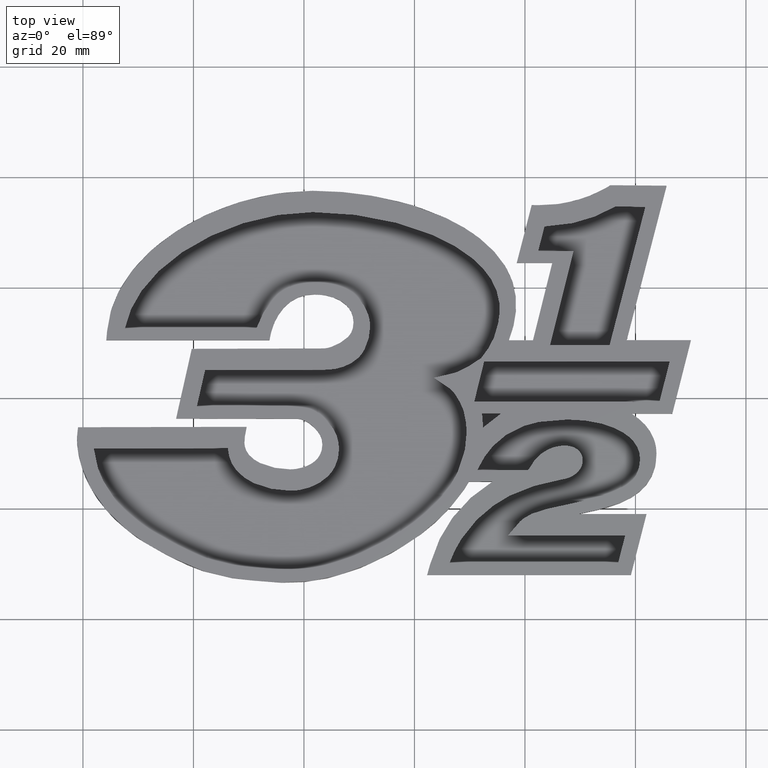
[diagram: clean part render]
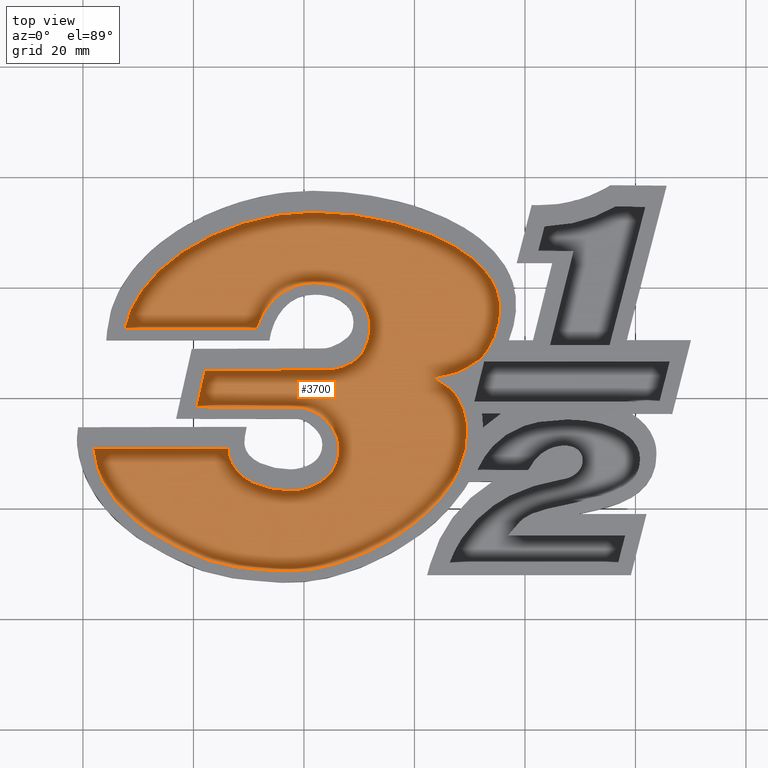
[diagram: same view with one face highlighted and labeled with its STEP entity id]
A machine part, top view. The second image highlights one B-rep face of the part: STEP entity #3700.
In plain terms, the highlighted planar face has unit normal (0, 0, 1).
Its self-contained STEP definition (entity closure, byte-faithful):
#4 = EDGE_LOOP ( 'NONE', ( #2878, #2910, #3006, #2913, #3058, #3101, #3119, #3116, #2916, #3129, #3126, #2927, #2925, #2917, #2920, #2911, #2876, #2849, #3040, #3038, #3024, #3012, #2997, #3181, #3066, #3270, #3077, #3191, #3070, #3272, #3008, #3180, #3168, #2915 ) ) ;
#17 = VERTEX_POINT ( 'NONE', #1053 ) ;
#19 = VERTEX_POINT ( 'NONE', #5484 ) ;
#34 = VERTEX_POINT ( 'NONE', #1055 ) ;
#44 = VERTEX_POINT ( 'NONE', #1065 ) ;
#47 = VERTEX_POINT ( 'NONE', #1068 ) ;
#51 = VERTEX_POINT ( 'NONE', #1072 ) ;
#52 = VERTEX_POINT ( 'NONE', #1073 ) ;
#55 = VERTEX_POINT ( 'NONE', #1076 ) ;
#56 = VERTEX_POINT ( 'NONE', #1077 ) ;
#61 = VERTEX_POINT ( 'NONE', #1081 ) ;
#67 = VERTEX_POINT ( 'NONE', #1087 ) ;
#72 = VERTEX_POINT ( 'NONE', #1092 ) ;
#73 = VERTEX_POINT ( 'NONE', #1093 ) ;
#78 = VERTEX_POINT ( 'NONE', #1098 ) ;
#85 = VERTEX_POINT ( 'NONE', #1105 ) ;
#90 = VERTEX_POINT ( 'NONE', #1110 ) ;
#92 = VERTEX_POINT ( 'NONE', #1112 ) ;
#95 = VERTEX_POINT ( 'NONE', #1115 ) ;
#97 = VERTEX_POINT ( 'NONE', #1117 ) ;
#98 = VERTEX_POINT ( 'NONE', #1118 ) ;
#103 = VERTEX_POINT ( 'NONE', #1123 ) ;
#105 = VERTEX_POINT ( 'NONE', #1125 ) ;
#108 = VERTEX_POINT ( 'NONE', #1128 ) ;
#110 = VERTEX_POINT ( 'NONE', #1130 ) ;
#111 = VERTEX_POINT ( 'NONE', #1131 ) ;
#112 = VERTEX_POINT ( 'NONE', #1132 ) ;
#148 = VERTEX_POINT ( 'NONE', #1168 ) ;
#153 = VERTEX_POINT ( 'NONE', #1173 ) ;
#159 = VERTEX_POINT ( 'NONE', #1179 ) ;
#162 = VERTEX_POINT ( 'NONE', #1182 ) ;
#166 = VERTEX_POINT ( 'NONE', #1186 ) ;
#167 = VERTEX_POINT ( 'NONE', #1187 ) ;
#173 = VERTEX_POINT ( 'NONE', #1193 ) ;
#180 = VERTEX_POINT ( 'NONE', #1200 ) ;
#443 = VECTOR ( 'NONE', #5154, 999.9999999999998900 ) ;
#454 = VECTOR ( 'NONE', #5073, 1000.000000000000000 ) ;
#486 = VECTOR ( 'NONE', #5019, 1000.000000000000100 ) ;
#496 = VECTOR ( 'NONE', #5143, 1000.000000000000000 ) ;
#524 = VECTOR ( 'NONE', #5051, 1000.000000000000100 ) ;
#599 = EDGE_CURVE ( 'NONE', #162, #167, #3325, .T. ) ;
#602 = EDGE_CURVE ( 'NONE', #108, #110, #4195, .T. ) ;
#603 = EDGE_CURVE ( 'NONE', #173, #108, #4196, .T. ) ;
#610 = EDGE_CURVE ( 'NONE', #153, #111, #4198, .T. ) ;
#613 = EDGE_CURVE ( 'NONE', #159, #98, #4199, .T. ) ;
#618 = EDGE_CURVE ( 'NONE', #180, #97, #1583, .T. ) ;
#620 = EDGE_CURVE ( 'NONE', #97, #162, #1580, .T. ) ;
#623 = EDGE_CURVE ( 'NONE', #105, #159, #4202, .T. ) ;
#629 = EDGE_CURVE ( 'NONE', #103, #166, #1609, .T. ) ;
#635 = EDGE_CURVE ( 'NONE', #73, #180, #4204, .T. ) ;
#640 = EDGE_CURVE ( 'NONE', #166, #173, #4207, .T. ) ;
#642 = EDGE_CURVE ( 'NONE', #111, #47, #1660, .T. ) ;
#646 = EDGE_CURVE ( 'NONE', #47, #103, #4208, .T. ) ;
#649 = EDGE_CURVE ( 'NONE', #110, #112, #4209, .T. ) ;
#655 = EDGE_CURVE ( 'NONE', #112, #95, #4210, .T. ) ;
#658 = EDGE_CURVE ( 'NONE', #98, #153, #4211, .T. ) ;
#672 = EDGE_CURVE ( 'NONE', #167, #105, #4218, .T. ) ;
#765 = AXIS2_PLACEMENT_3D ( 'NONE', #3848, #3854, #3855 ) ;
#1053 = CARTESIAN_POINT ( 'NONE',  ( 89.88598630565350300, 147.3221153438261100, -3.388131789017201400E-018 ) ) ;
#1055 = CARTESIAN_POINT ( 'NONE',  ( 115.3535101708144200, 157.2197024181745900, -3.388131789017201400E-018 ) ) ;
#1065 = CARTESIAN_POINT ( 'NONE',  ( 106.8396456981165100, 144.4537288428071000, 0.0000000000000000000 ) ) ;
#1068 = CARTESIAN_POINT ( 'NONE',  ( 41.97056476815319600, 130.8559369625259900, 0.0000000000000000000 ) ) ;
#1072 = CARTESIAN_POINT ( 'NONE',  ( 71.36877032720988700, 152.6053415252310100, 0.0000000000000000000 ) ) ;
#1073 = CARTESIAN_POINT ( 'NONE',  ( 108.7740668130843000, 138.0362049728837200, 0.0000000000000000000 ) ) ;
#1076 = CARTESIAN_POINT ( 'NONE',  ( 81.86166990140958400, 160.9047488039721000, -3.388131789017201400E-018 ) ) ;
#1077 = CARTESIAN_POINT ( 'NONE',  ( 109.7128553328148000, 145.6993031154991900, 0.0000000000000000000 ) ) ;
#1081 = CARTESIAN_POINT ( 'NONE',  ( 106.3351050433560500, 141.7493304922268500, 0.0000000000000000000 ) ) ;
#1087 = CARTESIAN_POINT ( 'NONE',  ( 81.58468422439550200, 173.6564252330759400, -3.388131789017201400E-018 ) ) ;
#1092 = CARTESIAN_POINT ( 'NONE',  ( 108.1079576010111900, 139.4199275745343100, 1.084202172485504400E-016 ) ) ;
#1093 = CARTESIAN_POINT ( 'NONE',  ( 83.61281193656208200, 145.1169097237177300, -3.388131789017201400E-018 ) ) ;
#1098 = CARTESIAN_POINT ( 'NONE',  ( 112.0737792688566100, 147.2392607974059000, 0.0000000000000000000 ) ) ;
#1105 = CARTESIAN_POINT ( 'NONE',  ( 113.3395073501374000, 148.9829958772650400, 0.0000000000000000000 ) ) ;
#1110 = CARTESIAN_POINT ( 'NONE',  ( 47.59244383575813900, 152.6053415252310100, 0.0000000000000000000 ) ) ;
#1112 = CARTESIAN_POINT ( 'NONE',  ( 103.4923909246476900, 143.6754817726892100, 0.0000000000000000000 ) ) ;
#1115 = CARTESIAN_POINT ( 'NONE',  ( 108.9339192435999000, 137.4557063836190900, 0.0000000000000000000 ) ) ;
#1117 = CARTESIAN_POINT ( 'NONE',  ( 60.60009085941596400, 138.4286013486537000, 0.0000000000000000000 ) ) ;
#1118 = CARTESIAN_POINT ( 'NONE',  ( 77.55082192071645900, 123.2198828194697000, -3.388131789017201400E-018 ) ) ;
#1123 = CARTESIAN_POINT ( 'NONE',  ( 56.61015352317386400, 113.3734554130772000, 0.0000000000000000000 ) ) ;
#1125 = CARTESIAN_POINT ( 'NONE',  ( 86.33977726791158600, 130.7398372446731100, -3.388131789017201400E-018 ) ) ;
#1128 = CARTESIAN_POINT ( 'NONE',  ( 99.39548337358863300, 116.9050227950068000, -3.388131789017201400E-018 ) ) ;
#1130 = CARTESIAN_POINT ( 'NONE',  ( 106.4818725319733100, 124.2434206881374100, -3.388131789017201400E-018 ) ) ;
#1131 = CARTESIAN_POINT ( 'NONE',  ( 66.21990286972975100, 130.9165706430663900, 0.0000000000000000000 ) ) ;
#1132 = CARTESIAN_POINT ( 'NONE',  ( 106.5473293461930000, 124.3385053235303000, -3.388131789017201400E-018 ) ) ;
#1168 = CARTESIAN_POINT ( 'NONE',  ( 91.97474769836048800, 152.8504600690064900, -3.388131789017201400E-018 ) ) ;
#1173 = CARTESIAN_POINT ( 'NONE',  ( 67.74573566014690600, 126.9378298671512900, -3.388131789017201400E-018 ) ) ;
#1179 = CARTESIAN_POINT ( 'NONE',  ( 84.34489472717768900, 125.8388444073566000, -3.388131789017201400E-018 ) ) ;
#1182 = CARTESIAN_POINT ( 'NONE',  ( 78.86736516040468800, 138.3882937314762100, 0.0000000000000000000 ) ) ;
#1186 = CARTESIAN_POINT ( 'NONE',  ( 57.65591225772144700, 112.8591026571294000, 0.0000000000000000000 ) ) ;
#1187 = CARTESIAN_POINT ( 'NONE',  ( 84.00520831233203000, 136.0332264577594100, -3.388131789017201400E-018 ) ) ;
#1193 = CARTESIAN_POINT ( 'NONE',  ( 76.10457083600857700, 108.7401464949647000, -3.388131789017201400E-018 ) ) ;
#1200 = CARTESIAN_POINT ( 'NONE',  ( 62.10783689853556700, 145.0547257502088900, 0.0000000000000000000 ) ) ;
#1514 = CARTESIAN_POINT ( 'NONE',  ( 79.92897133418442500, 138.3882937314762100, -3.388131789017201400E-018 ) ) ;
#1517 = CARTESIAN_POINT ( 'NONE',  ( 78.86736516040468800, 138.3882937314762100, 0.0000000000000000000 ) ) ;
#1521 = CARTESIAN_POINT ( 'NONE',  ( 82.24476451936936900, 137.7936702507221300, -3.388131789017201400E-018 ) ) ;
#1522 = CARTESIAN_POINT ( 'NONE',  ( 84.00520831233203000, 136.0332264577594100, -3.388131789017201400E-018 ) ) ;
#1525 = CARTESIAN_POINT ( 'NONE',  ( 99.39548337358863300, 116.9050227950068000, -3.388131789017201400E-018 ) ) ;
#1526 = CARTESIAN_POINT ( 'NONE',  ( 102.1887667930292000, 118.9893055635829000, -3.388131789017201400E-018 ) ) ;
#1529 = CARTESIAN_POINT ( 'NONE',  ( 76.10457083600857700, 108.7401464949647000, -3.388131789017201400E-018 ) ) ;
#1530 = CARTESIAN_POINT ( 'NONE',  ( 86.95851641706245500, 108.2895280054940100, -3.388131789017201400E-018 ) ) ;
#1531 = CARTESIAN_POINT ( 'NONE',  ( 104.5729451235964000, 121.4584054978615100, -3.388131789017201400E-018 ) ) ;
#1532 = CARTESIAN_POINT ( 'NONE',  ( 106.4818725319733100, 124.2434206881374100, -3.388131789017201400E-018 ) ) ;
#1533 = CARTESIAN_POINT ( 'NONE',  ( 66.79609508963778800, 128.0788454918661000, -3.388131789017201400E-018 ) ) ;
#1535 = CARTESIAN_POINT ( 'NONE',  ( 96.67575274275814900, 114.8755170446461000, -3.388131789017201400E-018 ) ) ;
#1536 = CARTESIAN_POINT ( 'NONE',  ( 99.39548337358863300, 116.9050227950068000, -3.388131789017201400E-018 ) ) ;
#1553 = CARTESIAN_POINT ( 'NONE',  ( 67.74573566014690600, 126.9378298671512900, -3.388131789017201400E-018 ) ) ;
#1557 = CARTESIAN_POINT ( 'NONE',  ( 66.28277586233555500, 129.4327680175692900, -3.388131789017201400E-018 ) ) ;
#1558 = CARTESIAN_POINT ( 'NONE',  ( 66.21990286972975100, 130.9165706430663900, 0.0000000000000000000 ) ) ;
#1560 = CARTESIAN_POINT ( 'NONE',  ( 82.41391870769513200, 123.9078683878741200, -3.388131789017201400E-018 ) ) ;
#1564 = CARTESIAN_POINT ( 'NONE',  ( 84.34489472717768900, 125.8388444073566000, -3.388131789017201400E-018 ) ) ;
#1567 = CARTESIAN_POINT ( 'NONE',  ( 79.56930336552434800, 123.2198828194697000, -3.388131789017201400E-018 ) ) ;
#1568 = CARTESIAN_POINT ( 'NONE',  ( 77.55082192071645900, 123.2198828194697000, -3.388131789017201400E-018 ) ) ;
#1579 = CARTESIAN_POINT ( 'NONE',  ( 86.33977726791158600, 130.7398372446731100, -3.388131789017201400E-018 ) ) ;
#1580 = LINE ( 'NONE', #1590, #2621 ) ;
#1583 = LINE ( 'NONE', #1584, #2633 ) ;
#1584 = CARTESIAN_POINT ( 'NONE',  ( 40.17839030737962200, 48.68090854216829700, 0.0000000000000000000 ) ) ;
#1585 = DIRECTION ( 'NONE',  ( -0.2218741813064825700, -0.9750753035892038000, 0.0000000000000000000 ) ) ;
#1590 = CARTESIAN_POINT ( 'NONE',  ( 96.76179477192720000, 138.3488088139944800, 0.0000000000000000000 ) ) ;
#1591 = DIRECTION ( 'NONE',  ( 0.9999975655818993400, -0.002206542606617476900, 0.0000000000000000000 ) ) ;
#1596 = CARTESIAN_POINT ( 'NONE',  ( 86.33977726791158600, 128.8384890463636900, -3.388131789017201400E-018 ) ) ;
#1601 = CARTESIAN_POINT ( 'NONE',  ( 85.65006915176456900, 127.1438465771692800, -3.388131789017201400E-018 ) ) ;
#1602 = CARTESIAN_POINT ( 'NONE',  ( 84.34489472717768900, 125.8388444073566000, -3.388131789017201400E-018 ) ) ;
#1609 = LINE ( 'NONE', #1619, #2635 ) ;
#1619 = CARTESIAN_POINT ( 'NONE',  ( 119.4580805534823900, 82.46192352170808700, 0.0000000000000000000 ) ) ;
#1620 = DIRECTION ( 'NONE',  ( 0.8973346123581560400, -0.4413508734148349200, 0.0000000000000000000 ) ) ;
#1629 = CARTESIAN_POINT ( 'NONE',  ( 81.96881237100085100, 145.1599734172833100, -3.388131789017201400E-018 ) ) ;
#1632 = CARTESIAN_POINT ( 'NONE',  ( 83.61281193656208200, 145.1169097237177300, -3.388131789017201400E-018 ) ) ;
#1638 = CARTESIAN_POINT ( 'NONE',  ( 66.56062281322095900, 145.0791859281542300, -3.388131789017201400E-018 ) ) ;
#1639 = CARTESIAN_POINT ( 'NONE',  ( 62.10783689853556700, 145.0547257502088900, 0.0000000000000000000 ) ) ;
#1647 = CARTESIAN_POINT ( 'NONE',  ( 61.79519448324911900, 110.8144384866336100, -3.388131789017201400E-018 ) ) ;
#1652 = CARTESIAN_POINT ( 'NONE',  ( 57.65591225772144700, 112.8591026571294000, 0.0000000000000000000 ) ) ;
#1654 = CARTESIAN_POINT ( 'NONE',  ( 42.21930066218823900, 127.6495865944040100, -3.388131789017201400E-018 ) ) ;
#1655 = CARTESIAN_POINT ( 'NONE',  ( 65.06476235352548100, 109.1986887040514100, -3.388131789017201400E-018 ) ) ;
#1656 = CARTESIAN_POINT ( 'NONE',  ( 76.10457083600857700, 108.7401464949647000, -3.388131789017201400E-018 ) ) ;
#1660 = LINE ( 'NONE', #1661, #2724 ) ;
#1661 = CARTESIAN_POINT ( 'NONE',  ( 96.29776446326803800, 130.9917781165059400, 0.0000000000000000000 ) ) ;
#1662 = DIRECTION ( 'NONE',  ( -0.9999968739490449100, -0.002500418392553534700, 0.0000000000000000000 ) ) ;
#1670 = CARTESIAN_POINT ( 'NONE',  ( 41.97056476815319600, 130.8559369625259900, 0.0000000000000000000 ) ) ;
#1673 = CARTESIAN_POINT ( 'NONE',  ( 106.5475016009672900, 124.3391943426273900, -3.388131789017201400E-018 ) ) ;
#1674 = CARTESIAN_POINT ( 'NONE',  ( 44.12977836353353200, 119.4506038490579000, -3.388131789017201400E-018 ) ) ;
#1675 = CARTESIAN_POINT ( 'NONE',  ( 56.61015352317386400, 113.3734554130772000, 0.0000000000000000000 ) ) ;
#1680 = CARTESIAN_POINT ( 'NONE',  ( 106.4818725319733100, 124.2434206881374100, -3.388131789017201400E-018 ) ) ;
#1683 = CARTESIAN_POINT ( 'NONE',  ( 106.5473293461930000, 124.3385053235303000, -3.388131789017201400E-018 ) ) ;
#1684 = CARTESIAN_POINT ( 'NONE',  ( 106.9862345110139000, 124.9751589692045000, -3.388131789017201400E-018 ) ) ;
#1685 = CARTESIAN_POINT ( 'NONE',  ( 106.5473293461930000, 124.3385053235303000, -3.388131789017201400E-018 ) ) ;
#1701 = CARTESIAN_POINT ( 'NONE',  ( 74.30640324748245000, 123.2198828194697000, -3.388131789017201400E-018 ) ) ;
#1702 = CARTESIAN_POINT ( 'NONE',  ( 77.55082192071645900, 123.2198828194697000, -3.388131789017201400E-018 ) ) ;
#1703 = CARTESIAN_POINT ( 'NONE',  ( 110.7811794427908000, 130.7525840979685100, -3.388131789017201400E-018 ) ) ;
#1704 = CARTESIAN_POINT ( 'NONE',  ( 108.9339192435999000, 137.4557063836190900, 0.0000000000000000000 ) ) ;
#1713 = CARTESIAN_POINT ( 'NONE',  ( 70.02673338093082100, 124.1965673895381000, -3.388131789017201400E-018 ) ) ;
#1714 = CARTESIAN_POINT ( 'NONE',  ( 67.74573566014690600, 126.9378298671512900, -3.388131789017201400E-018 ) ) ;
#1756 = CARTESIAN_POINT ( 'NONE',  ( 85.50950925596637800, 134.5287532593507900, -3.388131789017201400E-018 ) ) ;
#1757 = CARTESIAN_POINT ( 'NONE',  ( 84.00520831233203000, 136.0332264577594100, -3.388131789017201400E-018 ) ) ;
#1762 = CARTESIAN_POINT ( 'NONE',  ( 86.33977726791158600, 132.9722591191149100, -3.388131789017201400E-018 ) ) ;
#1763 = CARTESIAN_POINT ( 'NONE',  ( 86.33977726791158600, 130.7398372446731100, -3.388131789017201400E-018 ) ) ;
#2229 = LINE ( 'NONE', #2240, #2683 ) ;
#2240 = CARTESIAN_POINT ( 'NONE',  ( 134.0653840373963400, 46.19165858718491100, 0.0000000000000000000 ) ) ;
#2241 = DIRECTION ( 'NONE',  ( -0.2654889335139126200, 0.9641139072649275200, 0.0000000000000000000 ) ) ;
#2621 = VECTOR ( 'NONE', #1591, 1000.000000000000200 ) ;
#2633 = VECTOR ( 'NONE', #1585, 1000.000000000000200 ) ;
#2635 = VECTOR ( 'NONE', #1620, 1000.000000000000200 ) ;
#2683 = VECTOR ( 'NONE', #2241, 1000.000000000000000 ) ;
#2724 = VECTOR ( 'NONE', #1662, 1000.000000000000200 ) ;
#2849 = ORIENTED_EDGE ( 'NONE', *, *, #3618, .T. ) ;
#2876 = ORIENTED_EDGE ( 'NONE', *, *, #3640, .T. ) ;
#2878 = ORIENTED_EDGE ( 'NONE', *, *, #649, .T. ) ;
#2910 = ORIENTED_EDGE ( 'NONE', *, *, #655, .T. ) ;
#2911 = ORIENTED_EDGE ( 'NONE', *, *, #3633, .T. ) ;
#2913 = ORIENTED_EDGE ( 'NONE', *, *, #3620, .T. ) ;
#2915 = ORIENTED_EDGE ( 'NONE', *, *, #602, .T. ) ;
#2916 = ORIENTED_EDGE ( 'NONE', *, *, #3591, .T. ) ;
#2917 = ORIENTED_EDGE ( 'NONE', *, *, #3597, .T. ) ;
#2920 = ORIENTED_EDGE ( 'NONE', *, *, #3586, .T. ) ;
#2925 = ORIENTED_EDGE ( 'NONE', *, *, #3635, .T. ) ;
#2927 = ORIENTED_EDGE ( 'NONE', *, *, #3612, .T. ) ;
#2997 = ORIENTED_EDGE ( 'NONE', *, *, #599, .T. ) ;
#3006 = ORIENTED_EDGE ( 'NONE', *, *, #3364, .T. ) ;
#3008 = ORIENTED_EDGE ( 'NONE', *, *, #629, .T. ) ;
#3012 = ORIENTED_EDGE ( 'NONE', *, *, #620, .T. ) ;
#3024 = ORIENTED_EDGE ( 'NONE', *, *, #618, .T. ) ;
#3038 = ORIENTED_EDGE ( 'NONE', *, *, #635, .T. ) ;
#3040 = ORIENTED_EDGE ( 'NONE', *, *, #3641, .T. ) ;
#3058 = ORIENTED_EDGE ( 'NONE', *, *, #3621, .T. ) ;
#3066 = ORIENTED_EDGE ( 'NONE', *, *, #623, .T. ) ;
#3070 = ORIENTED_EDGE ( 'NONE', *, *, #642, .T. ) ;
#3077 = ORIENTED_EDGE ( 'NONE', *, *, #658, .T. ) ;
#3101 = ORIENTED_EDGE ( 'NONE', *, *, #3606, .T. ) ;
#3116 = ORIENTED_EDGE ( 'NONE', *, *, #3605, .T. ) ;
#3119 = ORIENTED_EDGE ( 'NONE', *, *, #3617, .T. ) ;
#3126 = ORIENTED_EDGE ( 'NONE', *, *, #3596, .T. ) ;
#3129 = ORIENTED_EDGE ( 'NONE', *, *, #3579, .T. ) ;
#3168 = ORIENTED_EDGE ( 'NONE', *, *, #603, .T. ) ;
#3180 = ORIENTED_EDGE ( 'NONE', *, *, #640, .T. ) ;
#3181 = ORIENTED_EDGE ( 'NONE', *, *, #672, .T. ) ;
#3191 = ORIENTED_EDGE ( 'NONE', *, *, #610, .T. ) ;
#3270 = ORIENTED_EDGE ( 'NONE', *, *, #613, .T. ) ;
#3272 = ORIENTED_EDGE ( 'NONE', *, *, #646, .T. ) ;
#3325 = B_SPLINE_CURVE_WITH_KNOTS ( 'NONE', 3,
 ( #1517, #1514, #1521, #1522 ),
 .UNSPECIFIED., .F., .F.,
 ( 4, 4 ),
 ( 20.00000000000000000, 21.00000000000000000 ),
 .UNSPECIFIED. ) ;
#3364 = EDGE_CURVE ( 'NONE', #95, #52, #2229, .T. ) ;
#3579 = EDGE_CURVE ( 'NONE', #78, #85, #5017, .T. ) ;
#3586 = EDGE_CURVE ( 'NONE', #51, #55, #4272, .T. ) ;
#3591 = EDGE_CURVE ( 'NONE', #56, #78, #5049, .T. ) ;
#3596 = EDGE_CURVE ( 'NONE', #85, #34, #4277, .T. ) ;
#3597 = EDGE_CURVE ( 'NONE', #90, #51, #5071, .T. ) ;
#3605 = EDGE_CURVE ( 'NONE', #44, #56, #4280, .T. ) ;
#3606 = EDGE_CURVE ( 'NONE', #61, #92, #4281, .T. ) ;
#3612 = EDGE_CURVE ( 'NONE', #34, #67, #4284, .T. ) ;
#3617 = EDGE_CURVE ( 'NONE', #92, #44, #5141, .T. ) ;
#3618 = EDGE_CURVE ( 'NONE', #148, #17, #4286, .T. ) ;
#3620 = EDGE_CURVE ( 'NONE', #52, #72, #5152, .T. ) ;
#3621 = EDGE_CURVE ( 'NONE', #72, #61, #4288, .T. ) ;
#3633 = EDGE_CURVE ( 'NONE', #55, #19, #4295, .T. ) ;
#3635 = EDGE_CURVE ( 'NONE', #67, #90, #4297, .T. ) ;
#3640 = EDGE_CURVE ( 'NONE', #19, #148, #4300, .T. ) ;
#3641 = EDGE_CURVE ( 'NONE', #17, #73, #4301, .T. ) ;
#3700 = ADVANCED_FACE ( 'NONE', ( #3852 ), #3846, .T. ) ;
#3846 = PLANE ( 'NONE',  #765 ) ;
#3848 = CARTESIAN_POINT ( 'NONE',  ( 142.6164886118068000, 134.0428947961333700, 0.0000000000000000000 ) ) ;
#3852 = FACE_OUTER_BOUND ( 'NONE', #4, .T. ) ;
#3854 = DIRECTION ( 'NONE',  ( 0.0000000000000000000, 0.0000000000000000000, 1.000000000000000000 ) ) ;
#3855 = DIRECTION ( 'NONE',  ( 1.000000000000000000, 0.0000000000000000000, -0.0000000000000000000 ) ) ;
#4195 = B_SPLINE_CURVE_WITH_KNOTS ( 'NONE', 3,
 ( #1525, #1526, #1531, #1532 ),
 .UNSPECIFIED., .F., .F.,
 ( 4, 4 ),
 ( 31.00000000000000000, 32.00000000000000000 ),
 .UNSPECIFIED. ) ;
#4196 = B_SPLINE_CURVE_WITH_KNOTS ( 'NONE', 3,
 ( #1529, #1530, #1535, #1536 ),
 .UNSPECIFIED., .F., .F.,
 ( 4, 4 ),
 ( 30.00000000000000000, 31.00000000000000000 ),
 .UNSPECIFIED. ) ;
#4198 = B_SPLINE_CURVE_WITH_KNOTS ( 'NONE', 3,
 ( #1553, #1533, #1557, #1558 ),
 .UNSPECIFIED., .F., .F.,
 ( 4, 4 ),
 ( 25.00000000000000000, 26.00000000000000000 ),
 .UNSPECIFIED. ) ;
#4199 = B_SPLINE_CURVE_WITH_KNOTS ( 'NONE', 3,
 ( #1564, #1560, #1567, #1568 ),
 .UNSPECIFIED., .F., .F.,
 ( 4, 4 ),
 ( 23.00000000000000000, 24.00000000000000000 ),
 .UNSPECIFIED. ) ;
#4202 = B_SPLINE_CURVE_WITH_KNOTS ( 'NONE', 3,
 ( #1579, #1596, #1601, #1602 ),
 .UNSPECIFIED., .F., .F.,
 ( 4, 4 ),
 ( 22.00000000000000000, 23.00000000000000000 ),
 .UNSPECIFIED. ) ;
#4204 = B_SPLINE_CURVE_WITH_KNOTS ( 'NONE', 3,
 ( #1632, #1629, #1638, #1639 ),
 .UNSPECIFIED., .F., .F.,
 ( 4, 4 ),
 ( 17.00000000000000000, 18.00000000000000000 ),
 .UNSPECIFIED. ) ;
#4207 = B_SPLINE_CURVE_WITH_KNOTS ( 'NONE', 3,
 ( #1652, #1647, #1655, #1656 ),
 .UNSPECIFIED., .F., .F.,
 ( 4, 4 ),
 ( 29.00000000000000000, 30.00000000000000000 ),
 .UNSPECIFIED. ) ;
#4208 = B_SPLINE_CURVE_WITH_KNOTS ( 'NONE', 3,
 ( #1670, #1654, #1674, #1675 ),
 .UNSPECIFIED., .F., .F.,
 ( 4, 4 ),
 ( 27.00000000000000000, 28.00000000000000000 ),
 .UNSPECIFIED. ) ;
#4209 = B_SPLINE_CURVE_WITH_KNOTS ( 'NONE', 2,
 ( #1680, #1673, #1685 ),
 .UNSPECIFIED., .F., .F.,
 ( 3, 3 ),
 ( 32.00000000000000000, 33.00000000000000000 ),
 .UNSPECIFIED. ) ;
#4210 = B_SPLINE_CURVE_WITH_KNOTS ( 'NONE', 3,
 ( #1683, #1684, #1703, #1704 ),
 .UNSPECIFIED., .F., .F.,
 ( 4, 4 ),
 ( 33.00000000000000000, 34.00000000000000000 ),
 .UNSPECIFIED. ) ;
#4211 = B_SPLINE_CURVE_WITH_KNOTS ( 'NONE', 3,
 ( #1702, #1701, #1713, #1714 ),
 .UNSPECIFIED., .F., .F.,
 ( 4, 4 ),
 ( 24.00000000000000000, 25.00000000000000000 ),
 .UNSPECIFIED. ) ;
#4218 = B_SPLINE_CURVE_WITH_KNOTS ( 'NONE', 3,
 ( #1757, #1756, #1762, #1763 ),
 .UNSPECIFIED., .F., .F.,
 ( 4, 4 ),
 ( 21.00000000000000000, 22.00000000000000000 ),
 .UNSPECIFIED. ) ;
#4272 = B_SPLINE_CURVE_WITH_KNOTS ( 'NONE', 3,
 ( #5007, #5026, #5034, #5035 ),
 .UNSPECIFIED., .F., .F.,
 ( 4, 4 ),
 ( 12.00000000000000000, 13.00000000000000000 ),
 .UNSPECIFIED. ) ;
#4277 = B_SPLINE_CURVE_WITH_KNOTS ( 'NONE', 3,
 ( #5063, #5064, #5069, #5070 ),
 .UNSPECIFIED., .F., .F.,
 ( 4, 4 ),
 ( 8.000000000000000000, 9.000000000000000000 ),
 .UNSPECIFIED. ) ;
#4280 = B_SPLINE_CURVE_WITH_KNOTS ( 'NONE', 3,
 ( #5095, #5091, #5099, #5100 ),
 .UNSPECIFIED., .F., .F.,
 ( 4, 4 ),
 ( 5.000000000000000000, 6.000000000000000000 ),
 .UNSPECIFIED. ) ;
#4281 = B_SPLINE_CURVE_WITH_KNOTS ( 'NONE', 2,
 ( #5097, #5098, #5103, #5104, #5105 ),
 .UNSPECIFIED., .F., .F.,
 ( 3, 2, 3 ),
 ( 3.000000000000000000, 3.998587099516266000, 3.999364116805812900 ),
 .UNSPECIFIED. ) ;
#4284 = B_SPLINE_CURVE_WITH_KNOTS ( 'NONE', 3,
 ( #5119, #5111, #5126, #5127 ),
 .UNSPECIFIED., .F., .F.,
 ( 4, 4 ),
 ( 9.000000000000000000, 10.00000000000000000 ),
 .UNSPECIFIED. ) ;
#4286 = B_SPLINE_CURVE_WITH_KNOTS ( 'NONE', 3,
 ( #5132, #5131, #5146, #5147 ),
 .UNSPECIFIED., .F., .F.,
 ( 4, 4 ),
 ( 15.00000000000000000, 16.00000000000000000 ),
 .UNSPECIFIED. ) ;
#4288 = B_SPLINE_CURVE_WITH_KNOTS ( 'NONE', 3,
 ( #5149, #5148, #5157, #5158, #5159, #5160, #5161, #5162, #5163, #5164, #5165, #5166 ),
 .UNSPECIFIED., .F., .F.,
 ( 4, 2, 2, 1, 1, 2, 4 ),
 ( 0.0000000000000000000, 0.001471797019130468000, 0.002207695528695681400, 0.002575644783478257300, 0.002759619410869588800, 0.002851606724565271100, 0.002943594038260952500 ),
 .UNSPECIFIED. ) ;
#4295 = B_SPLINE_CURVE_WITH_KNOTS ( 'NONE', 3,
 ( #5200, #5202, #5209, #5210 ),
 .UNSPECIFIED., .F., .F.,
 ( 4, 4 ),
 ( 13.00000000000000000, 14.00000000000000000 ),
 .UNSPECIFIED. ) ;
#4297 = B_SPLINE_CURVE_WITH_KNOTS ( 'NONE', 3,
 ( #5211, #5212, #5218, #5219 ),
 .UNSPECIFIED., .F., .F.,
 ( 4, 4 ),
 ( 10.00000000000000000, 11.00000000000000000 ),
 .UNSPECIFIED. ) ;
#4300 = B_SPLINE_CURVE_WITH_KNOTS ( 'NONE', 3,
 ( #5229, #5228, #5234, #5235 ),
 .UNSPECIFIED., .F., .F.,
 ( 4, 4 ),
 ( 14.00000000000000000, 15.00000000000000000 ),
 .UNSPECIFIED. ) ;
#4301 = B_SPLINE_CURVE_WITH_KNOTS ( 'NONE', 3,
 ( #5233, #5232, #5239, #5240 ),
 .UNSPECIFIED., .F., .F.,
 ( 4, 4 ),
 ( 16.00000000000000000, 17.00000000000000000 ),
 .UNSPECIFIED. ) ;
#5007 = CARTESIAN_POINT ( 'NONE',  ( 71.36877032720988700, 152.6053415252310100, 0.0000000000000000000 ) ) ;
#5017 = LINE ( 'NONE', #5018, #486 ) ;
#5018 = CARTESIAN_POINT ( 'NONE',  ( 53.76172468448014300, 66.90543818477523500, 0.0000000000000000000 ) ) ;
#5019 = DIRECTION ( 'NONE',  ( 0.5874299140451372200, 0.8092750435327428200, 0.0000000000000000000 ) ) ;
#5026 = CARTESIAN_POINT ( 'NONE',  ( 72.43709443718586300, 155.9999663616218900, -3.388131789017201400E-018 ) ) ;
#5034 = CARTESIAN_POINT ( 'NONE',  ( 75.56351859005010900, 160.8845949953834000, -3.388131789017201400E-018 ) ) ;
#5035 = CARTESIAN_POINT ( 'NONE',  ( 81.86166990140958400, 160.9047488039721000, -3.388131789017201400E-018 ) ) ;
#5049 = LINE ( 'NONE', #5050, #524 ) ;
#5050 = CARTESIAN_POINT ( 'NONE',  ( 50.20630068039485400, 106.8850175038966300, 0.0000000000000000000 ) ) ;
#5051 = DIRECTION ( 'NONE',  ( 0.8375741234661807600, 0.5463237023046492200, 0.0000000000000000000 ) ) ;
#5063 = CARTESIAN_POINT ( 'NONE',  ( 113.3395073501374000, 148.9829958772650400, 0.0000000000000000000 ) ) ;
#5064 = CARTESIAN_POINT ( 'NONE',  ( 114.5721625147597000, 150.6817724610417000, -3.388131789017201400E-018 ) ) ;
#5069 = CARTESIAN_POINT ( 'NONE',  ( 115.6628797453898000, 154.2271202249123100, -3.388131789017201400E-018 ) ) ;
#5070 = CARTESIAN_POINT ( 'NONE',  ( 115.3535101708144200, 157.2197024181745900, -3.388131789017201400E-018 ) ) ;
#5071 = LINE ( 'NONE', #5072, #454 ) ;
#5072 = CARTESIAN_POINT ( 'NONE',  ( 96.53564180846736100, 152.6053415252310100, 0.0000000000000000000 ) ) ;
#5073 = DIRECTION ( 'NONE',  ( 1.000000000000000000, 0.0000000000000000000, 0.0000000000000000000 ) ) ;
#5091 = CARTESIAN_POINT ( 'NONE',  ( 106.8546318634772900, 144.4573461930666000, -3.388131789017201400E-018 ) ) ;
#5095 = CARTESIAN_POINT ( 'NONE',  ( 106.8396456981165100, 144.4537288428071000, 0.0000000000000000000 ) ) ;
#5097 = CARTESIAN_POINT ( 'NONE',  ( 106.3351050433560500, 141.7493304922268500, 0.0000000000000000000 ) ) ;
#5098 = CARTESIAN_POINT ( 'NONE',  ( 103.4924511437789500, 143.6717282419726300, -3.388131789017201400E-018 ) ) ;
#5099 = CARTESIAN_POINT ( 'NONE',  ( 108.3530761447867000, 144.8123632828215900, -3.388131789017201400E-018 ) ) ;
#5100 = CARTESIAN_POINT ( 'NONE',  ( 109.7128553328148000, 145.6993031154991900, 0.0000000000000000000 ) ) ;
#5103 = CARTESIAN_POINT ( 'NONE',  ( 103.4923854199267100, 143.6754750111139500, -3.388131789017201400E-018 ) ) ;
#5104 = CARTESIAN_POINT ( 'NONE',  ( 103.4923853687859000, 143.6754779265375200, -3.388131789017201400E-018 ) ) ;
#5105 = CARTESIAN_POINT ( 'NONE',  ( 103.4923909246476900, 143.6754817726892100, 0.0000000000000000000 ) ) ;
#5111 = CARTESIAN_POINT ( 'NONE',  ( 114.3051676146529200, 167.3722265584316100, -3.388131789017201400E-018 ) ) ;
#5119 = CARTESIAN_POINT ( 'NONE',  ( 115.3535101708144200, 157.2197024181745900, -3.388131789017201400E-018 ) ) ;
#5126 = CARTESIAN_POINT ( 'NONE',  ( 97.00872122140754100, 173.6564252330759400, -3.388131789017201400E-018 ) ) ;
#5127 = CARTESIAN_POINT ( 'NONE',  ( 81.58468422439550200, 173.6564252330759400, -3.388131789017201400E-018 ) ) ;
#5131 = CARTESIAN_POINT ( 'NONE',  ( 91.96406790235622000, 150.9105268012623400, -3.388131789017201400E-018 ) ) ;
#5132 = CARTESIAN_POINT ( 'NONE',  ( 91.97474769836048800, 152.8504600690064900, -3.388131789017201400E-018 ) ) ;
#5141 = LINE ( 'NONE', #5142, #496 ) ;
#5142 = CARTESIAN_POINT ( 'NONE',  ( 73.10993106025772200, 136.6114660425892300, 0.0000000000000000000 ) ) ;
#5143 = DIRECTION ( 'NONE',  ( 0.9740198560255735000, 0.2264626239976943700, 0.0000000000000000000 ) ) ;
#5146 = CARTESIAN_POINT ( 'NONE',  ( 91.15515948241954900, 148.5516699225117900, -3.388131789017201400E-018 ) ) ;
#5147 = CARTESIAN_POINT ( 'NONE',  ( 89.88598630565350300, 147.3221153438261100, -3.388131789017201400E-018 ) ) ;
#5148 = CARTESIAN_POINT ( 'NONE',  ( 107.8942704163823400, 139.8638602025875700, 0.0000000000000000000 ) ) ;
#5149 = CARTESIAN_POINT ( 'NONE',  ( 108.1079576010111900, 139.4199275745343100, 1.084202172485504400E-016 ) ) ;
#5152 = LINE ( 'NONE', #5153, #443 ) ;
#5153 = CARTESIAN_POINT ( 'NONE',  ( 146.4054093298362600, 59.86382989218952100, 0.0000000000000000000 ) ) ;
#5154 = DIRECTION ( 'NONE',  ( -0.4337481677203712200, 0.9010341430818371600, 0.0000000000000000000 ) ) ;
#5157 = CARTESIAN_POINT ( 'NONE',  ( 107.6422770352268100, 140.2851647225575700, -0.0000000000000000000 ) ) ;
#5158 = CARTESIAN_POINT ( 'NONE',  ( 107.2004761339419000, 140.8776893058258700, -0.0000000000000000000 ) ) ;
#5159 = CARTESIAN_POINT ( 'NONE',  ( 107.0435032034051500, 141.0673256459429300, 0.0000000000000000000 ) ) ;
#5160 = CARTESIAN_POINT ( 'NONE',  ( 106.7913842838504200, 141.3375828906385400, -0.0000000000000000000 ) ) ;
#5161 = CARTESIAN_POINT ( 'NONE',  ( 106.6615838993726200, 141.4687010070391300, -0.0000000000000000000 ) ) ;
#5162 = CARTESIAN_POINT ( 'NONE',  ( 106.5021643516043600, 141.6131109008713900, -0.0000000000000000000 ) ) ;
#5163 = CARTESIAN_POINT ( 'NONE',  ( 106.4316495967841700, 141.6726507957820600, -0.0000000000000000000 ) ) ;
#5164 = CARTESIAN_POINT ( 'NONE',  ( 106.3839975643987100, 141.7116555848322700, -0.0000000000000000000 ) ) ;
#5165 = CARTESIAN_POINT ( 'NONE',  ( 106.3583946515282000, 141.7292530346549300, -0.0000000000000000000 ) ) ;
#5166 = CARTESIAN_POINT ( 'NONE',  ( 106.3351050433560500, 141.7493304922268500, 0.0000000000000000000 ) ) ;
#5200 = CARTESIAN_POINT ( 'NONE',  ( 81.86166990140958400, 160.9047488039721000, -3.388131789017201400E-018 ) ) ;
#5202 = CARTESIAN_POINT ( 'NONE',  ( 85.13847247220496700, 160.9152563452021000, -3.388131789017201400E-018 ) ) ;
#5209 = CARTESIAN_POINT ( 'NONE',  ( 87.96947968720901700, 159.8922352408571900, -3.388131789017201400E-018 ) ) ;
#5210 = CARTESIAN_POINT ( 'NONE',  ( 89.83310408995492900, 158.0243044687547100, -3.388131789017201400E-018 ) ) ;
#5211 = CARTESIAN_POINT ( 'NONE',  ( 81.58468422439550200, 173.6564252330759400, -3.388131789017201400E-018 ) ) ;
#5212 = CARTESIAN_POINT ( 'NONE',  ( 66.99883895894473100, 173.6564252330759400, -3.388131789017201400E-018 ) ) ;
#5218 = CARTESIAN_POINT ( 'NONE',  ( 49.99178058646039300, 164.7599829067409000, -3.388131789017201400E-018 ) ) ;
#5219 = CARTESIAN_POINT ( 'NONE',  ( 47.59244383575813900, 152.6053415252310100, 0.0000000000000000000 ) ) ;
#5228 = CARTESIAN_POINT ( 'NONE',  ( 91.24507647458456500, 156.6090592434140900, -3.388131789017201400E-018 ) ) ;
#5229 = CARTESIAN_POINT ( 'NONE',  ( 89.83310408995492900, 158.0243044687547100, -3.388131789017201400E-018 ) ) ;
#5232 = CARTESIAN_POINT ( 'NONE',  ( 87.67647431618851800, 145.1816775188403900, -3.388131789017201400E-018 ) ) ;
#5233 = CARTESIAN_POINT ( 'NONE',  ( 89.88598630565350300, 147.3221153438261100, -3.388131789017201400E-018 ) ) ;
#5234 = CARTESIAN_POINT ( 'NONE',  ( 91.98559974913902700, 154.8198489031495900, -3.388131789017201400E-018 ) ) ;
#5235 = CARTESIAN_POINT ( 'NONE',  ( 91.97474769836048800, 152.8504600690064900, -3.388131789017201400E-018 ) ) ;
#5239 = CARTESIAN_POINT ( 'NONE',  ( 84.52593449492755400, 145.0931385648694900, -3.388131789017201400E-018 ) ) ;
#5240 = CARTESIAN_POINT ( 'NONE',  ( 83.61281193656208200, 145.1169097237177300, -3.388131789017201400E-018 ) ) ;
#5484 = CARTESIAN_POINT ( 'NONE',  ( 89.83310408995492900, 158.0243044687547100, -3.388131789017201400E-018 ) ) ;